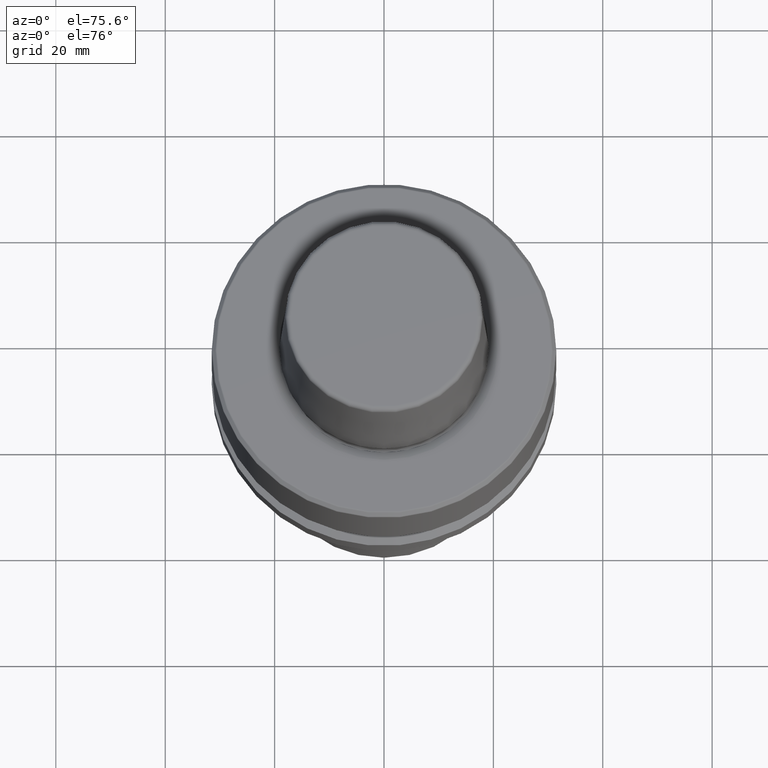
[diagram: clean part render]
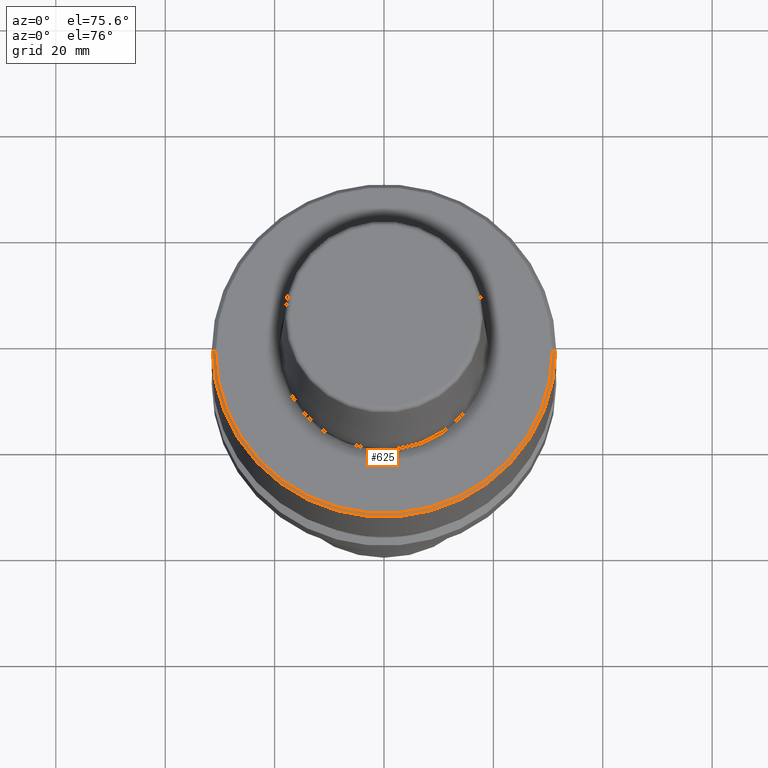
[diagram: same view with one face highlighted and labeled with its STEP entity id]
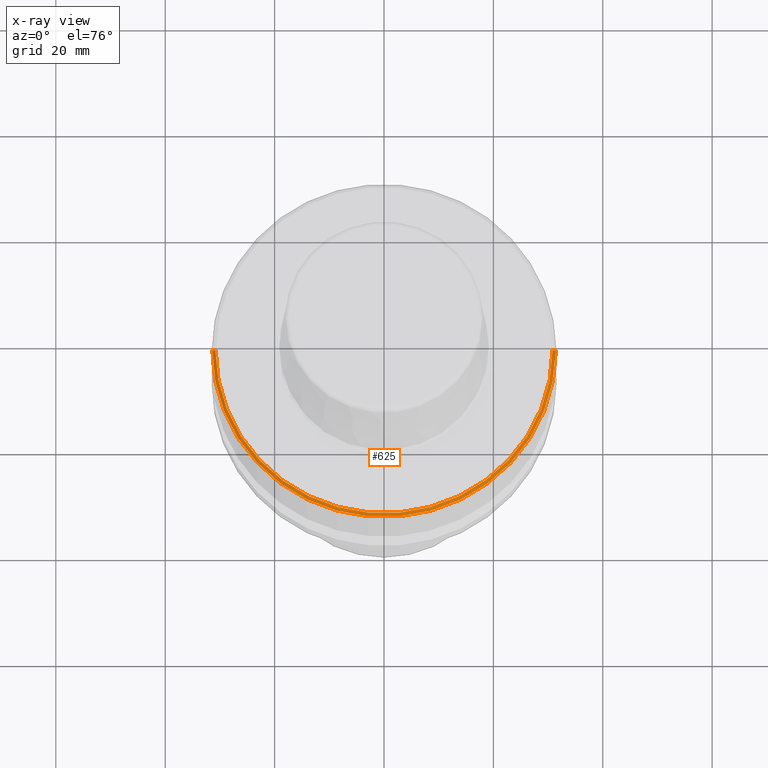
[diagram: x-ray of the same camera — body ghosted, the highlighted face saturated]
A machine part, auxiliary view. The second image highlights one B-rep face of the part: STEP entity #625.
The next image is the same camera in x-ray: the body ghosted, the highlighted face saturated — about 0% of this face is hidden behind the body in this view.
In plain terms, the highlighted conical surface has half-angle 45 deg.
Its self-contained STEP definition (entity closure, byte-faithful):
#4 = AXIS2_PLACEMENT_3D ( 'NONE', #784, #1205, #985 ) ;
#16 = ORIENTED_EDGE ( 'NONE', *, *, #193, .T. ) ;
#32 = LINE ( 'NONE', #638, #1471 ) ;
#137 = DIRECTION ( 'NONE',  ( -1.000000000000000000, 0.0000000000000000000, 0.0000000000000000000 ) ) ;
#193 = EDGE_CURVE ( 'NONE', #649, #1099, #515, .T. ) ;
#213 = CARTESIAN_POINT ( 'NONE',  ( 30.81715728752539000, 3.774013303098850100E-015, -5.117157287525382800 ) ) ;
#348 = LINE ( 'NONE', #213, #1266 ) ;
#358 = AXIS2_PLACEMENT_3D ( 'NONE', #1540, #1086, #137 ) ;
#375 = DIRECTION ( 'NONE',  ( 0.7071067811865410200, 8.659560562354854000E-017, -0.7071067811865540100 ) ) ;
#407 = CONICAL_SURFACE ( 'NONE', #358, 30.81715728752539000, 0.7853981633974391800 ) ;
#436 = CARTESIAN_POINT ( 'NONE',  ( 31.38284271247461600, 3.843289787597687600E-015, -5.682842712474617900 ) ) ;
#515 = CIRCLE ( 'NONE', #970, 31.38284271247461600 ) ;
#536 = DIRECTION ( 'NONE',  ( -0.0000000000000000000, -0.0000000000000000000, 1.000000000000000000 ) ) ;
#585 = ORIENTED_EDGE ( 'NONE', *, *, #1084, .F. ) ;
#625 = ADVANCED_FACE ( 'NONE', ( #974 ), #407, .T. ) ;
#638 = CARTESIAN_POINT ( 'NONE',  ( -30.81715728752539000, 0.0000000000000000000, -5.117157287525382800 ) ) ;
#649 = VERTEX_POINT ( 'NONE', #750 ) ;
#740 = CIRCLE ( 'NONE', #4, 30.81715728752539000 ) ;
#750 = CARTESIAN_POINT ( 'NONE',  ( -31.38284271247461600, 0.0000000000000000000, -5.682842712474617900 ) ) ;
#784 = CARTESIAN_POINT ( 'NONE',  ( 0.0000000000000000000, 0.0000000000000000000, -5.117157287525382800 ) ) ;
#795 = ORIENTED_EDGE ( 'NONE', *, *, #1180, .F. ) ;
#802 = VERTEX_POINT ( 'NONE', #1039 ) ;
#918 = DIRECTION ( 'NONE',  ( -0.7071067811865410200, 0.0000000000000000000, -0.7071067811865540100 ) ) ;
#968 = EDGE_CURVE ( 'NONE', #802, #649, #32, .T. ) ;
#970 = AXIS2_PLACEMENT_3D ( 'NONE', #1231, #536, #1408 ) ;
#974 = FACE_OUTER_BOUND ( 'NONE', #1396, .T. ) ;
#985 = DIRECTION ( 'NONE',  ( 1.000000000000000000, 0.0000000000000000000, 0.0000000000000000000 ) ) ;
#1039 = CARTESIAN_POINT ( 'NONE',  ( -30.81715728752539000, 0.0000000000000000000, -5.117157287525382800 ) ) ;
#1041 = CARTESIAN_POINT ( 'NONE',  ( 30.81715728752539000, 3.808651545348268500E-015, -5.117157287525382800 ) ) ;
#1084 = EDGE_CURVE ( 'NONE', #1532, #1099, #348, .T. ) ;
#1086 = DIRECTION ( 'NONE',  ( 0.0000000000000000000, 0.0000000000000000000, -1.000000000000000000 ) ) ;
#1099 = VERTEX_POINT ( 'NONE', #436 ) ;
#1111 = ORIENTED_EDGE ( 'NONE', *, *, #968, .T. ) ;
#1180 = EDGE_CURVE ( 'NONE', #802, #1532, #740, .T. ) ;
#1205 = DIRECTION ( 'NONE',  ( -0.0000000000000000000, -0.0000000000000000000, 1.000000000000000000 ) ) ;
#1231 = CARTESIAN_POINT ( 'NONE',  ( 0.0000000000000000000, 0.0000000000000000000, -5.682842712474617900 ) ) ;
#1266 = VECTOR ( 'NONE', #375, 1000.000000000000000 ) ;
#1396 = EDGE_LOOP ( 'NONE', ( #585, #795, #1111, #16 ) ) ;
#1408 = DIRECTION ( 'NONE',  ( 1.000000000000000000, 0.0000000000000000000, 0.0000000000000000000 ) ) ;
#1471 = VECTOR ( 'NONE', #918, 1000.000000000000000 ) ;
#1532 = VERTEX_POINT ( 'NONE', #1041 ) ;
#1540 = CARTESIAN_POINT ( 'NONE',  ( 0.0000000000000000000, 0.0000000000000000000, -5.117157287525382800 ) ) ;